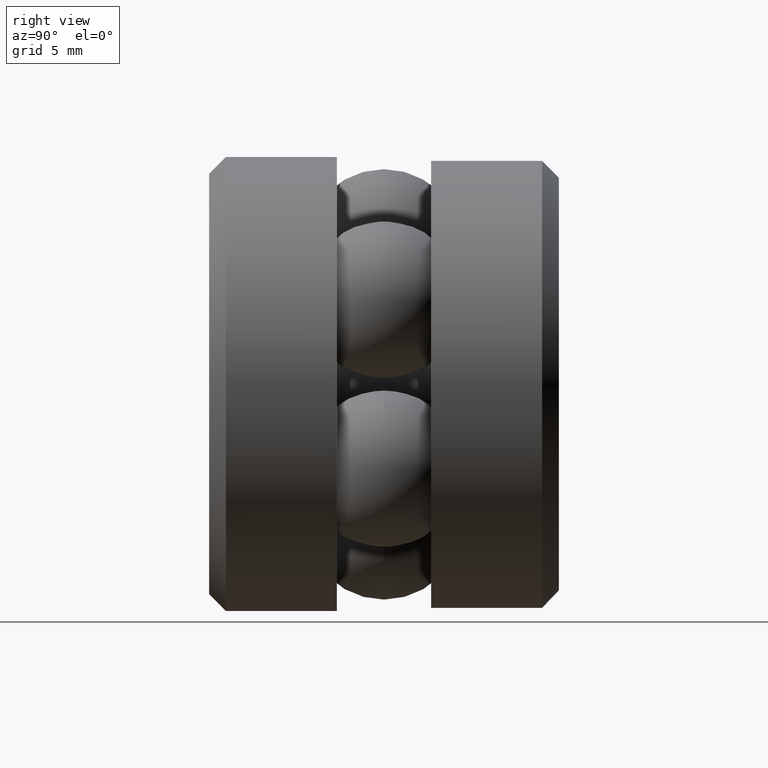
[diagram: clean part render]
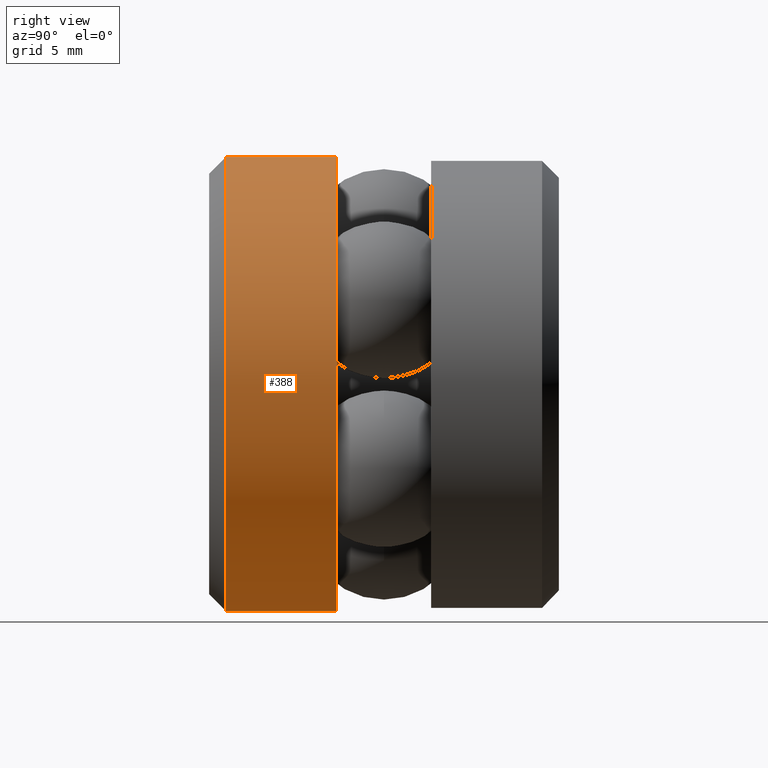
[diagram: same view with one face highlighted and labeled with its STEP entity id]
A machine part, right view. The second image highlights one B-rep face of the part: STEP entity #388.
In plain terms, the highlighted cylindrical surface (bore or boss wall) has radius 10.3187 mm, axis along (-0, 1, -0).
Its self-contained STEP definition (entity closure, byte-faithful):
#1 = EDGE_CURVE ( 'NONE', #20, #20, #309, .T. ) ;
#4 = EDGE_LOOP ( 'NONE', ( #404 ) ) ;
#20 = VERTEX_POINT ( 'NONE', #181 ) ;
#67 = CARTESIAN_POINT ( 'NONE',  ( 0.0000000000000000000, 0.03000000000000031100, 0.0000000000000000000 ) ) ;
#69 = FACE_OUTER_BOUND ( 'NONE', #183, .T. ) ;
#82 = EDGE_CURVE ( 'NONE', #206, #206, #530, .T. ) ;
#92 = DIRECTION ( 'NONE',  ( 0.0000000000000000000, 0.0000000000000000000, 1.000000000000000000 ) ) ;
#103 = DIRECTION ( 'NONE',  ( -0.0000000000000000000, 1.000000000000000000, -0.0000000000000000000 ) ) ;
#118 = CARTESIAN_POINT ( 'NONE',  ( 0.0000000000000000000, 0.03000000000000031100, 0.4062500000000000000 ) ) ;
#160 = AXIS2_PLACEMENT_3D ( 'NONE', #279, #103, #263 ) ;
#175 = CARTESIAN_POINT ( 'NONE',  ( 0.0000000000000000000, 0.0000000000000000000, 0.0000000000000000000 ) ) ;
#181 = CARTESIAN_POINT ( 'NONE',  ( 0.0000000000000000000, 0.2281999999999998500, 0.4062500000000000000 ) ) ;
#183 = EDGE_LOOP ( 'NONE', ( #239 ) ) ;
#206 = VERTEX_POINT ( 'NONE', #118 ) ;
#224 = AXIS2_PLACEMENT_3D ( 'NONE', #175, #325, #92 ) ;
#239 = ORIENTED_EDGE ( 'NONE', *, *, #1, .F. ) ;
#263 = DIRECTION ( 'NONE',  ( 0.0000000000000000000, 0.0000000000000000000, 1.000000000000000000 ) ) ;
#279 = CARTESIAN_POINT ( 'NONE',  ( 0.0000000000000000000, 0.2281999999999998500, 0.0000000000000000000 ) ) ;
#284 = FACE_OUTER_BOUND ( 'NONE', #4, .T. ) ;
#309 = CIRCLE ( 'NONE', #160, 0.4062500000000000000 ) ;
#314 = DIRECTION ( 'NONE',  ( -0.0000000000000000000, 1.000000000000000000, -0.0000000000000000000 ) ) ;
#325 = DIRECTION ( 'NONE',  ( -0.0000000000000000000, 1.000000000000000000, -0.0000000000000000000 ) ) ;
#388 = ADVANCED_FACE ( 'NONE', ( #284, #69 ), #391, .T. ) ;
#391 = CYLINDRICAL_SURFACE ( 'NONE', #224, 0.4062500000000000000 ) ;
#404 = ORIENTED_EDGE ( 'NONE', *, *, #82, .T. ) ;
#421 = AXIS2_PLACEMENT_3D ( 'NONE', #67, #314, #538 ) ;
#530 = CIRCLE ( 'NONE', #421, 0.4062500000000000000 ) ;
#538 = DIRECTION ( 'NONE',  ( 0.0000000000000000000, 0.0000000000000000000, 1.000000000000000000 ) ) ;